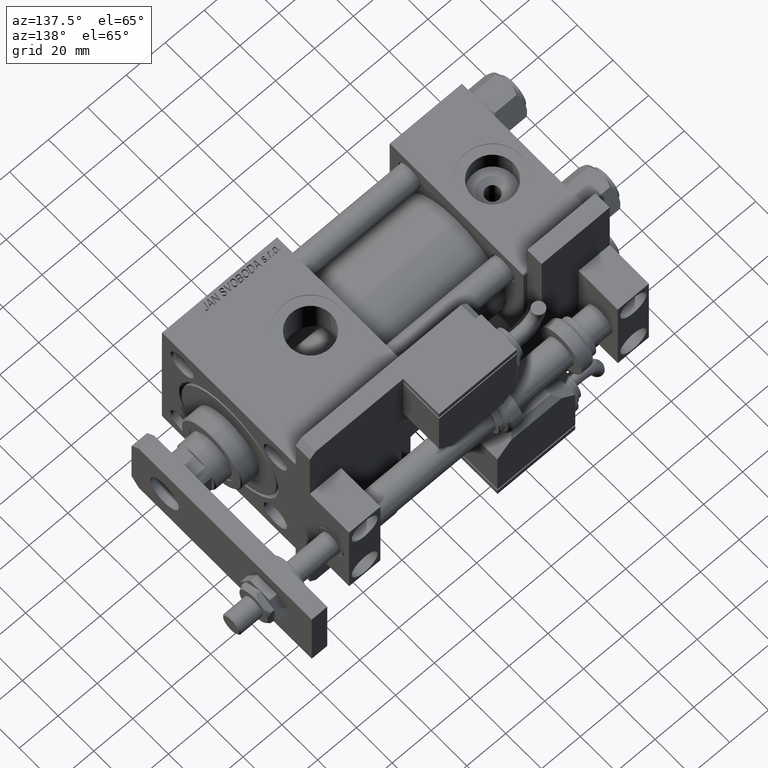
[diagram: clean part render]
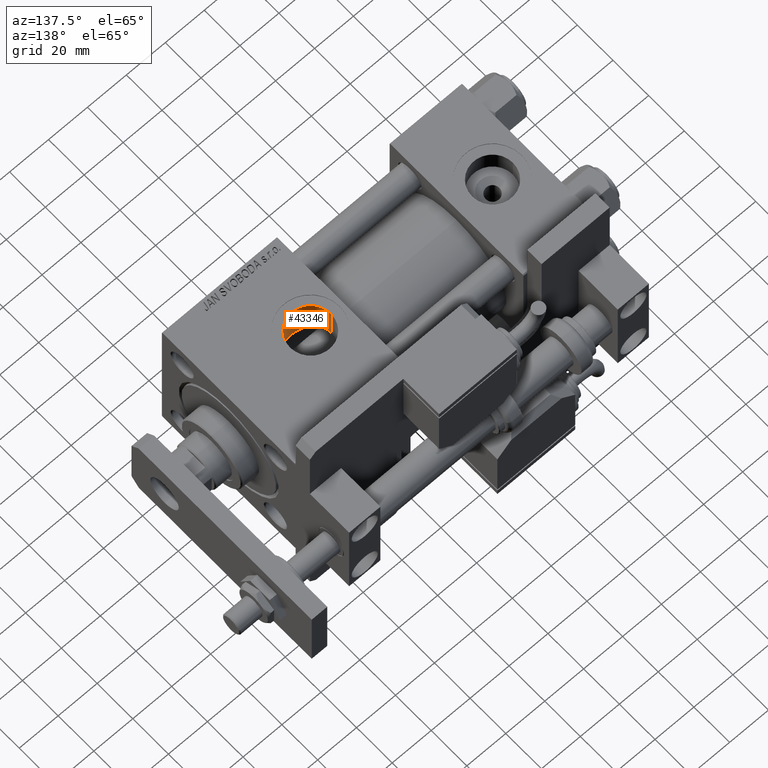
[diagram: same view with one face highlighted and labeled with its STEP entity id]
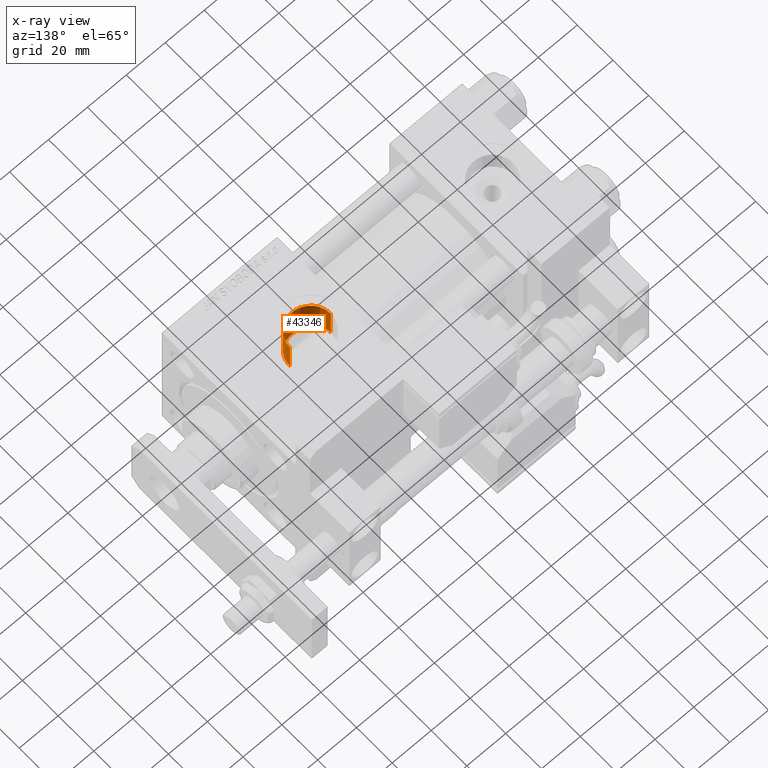
[diagram: x-ray of the same camera — body ghosted, the highlighted face saturated]
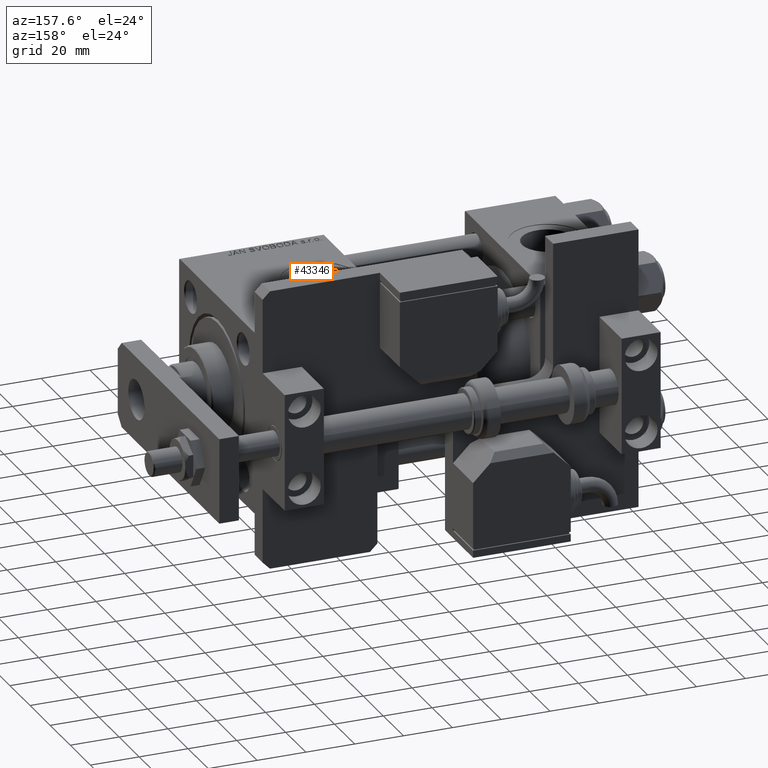
[diagram: same view with one face highlighted and labeled with its STEP entity id]
A machine part, auxiliary view. The second image highlights one B-rep face of the part: STEP entity #43346.
The next image is the same camera in x-ray: the body ghosted, the highlighted face saturated — about 0% of this face is hidden behind the body in this view.
A second angle (auxiliary view) of the same face is appended — the face is thin or edge-on in the first view.
In plain terms, the highlighted cylindrical surface (edge-blend (fillet) strip) has radius 10.48 mm, axis along (0, 0, -1).
Its self-contained STEP definition (entity closure, byte-faithful):
#1515 = CARTESIAN_POINT ( 'NONE',  ( 122.3399055889274081, -1.742655798298271996, 20.42864921923914068 ) ) ;
#2080 = CARTESIAN_POINT ( 'NONE',  ( 102.9348291443812400, -5.301977422005827556, 19.81114944782681775 ) ) ;
#2356 = CARTESIAN_POINT ( 'NONE',  ( 110.2733115260717653, -10.34262317724383706, 17.69989916064850988 ) ) ;
#2645 = CARTESIAN_POINT ( 'NONE',  ( 116.6706182581401663, -9.387829422307122584, 18.22501757978348991 ) ) ;
#5233 = ORIENTED_EDGE ( 'NONE', *, *, #23213, .F. ) ;
#5704 = CIRCLE ( 'NONE', #12916, 10.48000000000000398 ) ;
#5784 = CARTESIAN_POINT ( 'NONE',  ( 122.4626805718164206, -0.6975477180843286940, 20.49112900659146774 ) ) ;
#6055 = CARTESIAN_POINT ( 'NONE',  ( 108.5936487556907366, -9.934775369653648269, 17.93434123160426097 ) ) ;
#6336 = CARTESIAN_POINT ( 'NONE',  ( 112.3595713503588911, -10.47957092101780852, 17.61898389668664677 ) ) ;
#6617 = CARTESIAN_POINT ( 'NONE',  ( 102.0740038033542874, -3.431103397164402491, 20.22105395269823802 ) ) ;
#6626 = VERTEX_POINT ( 'NONE', #51345 ) ;
#6787 = VECTOR ( 'NONE', #19437, 1000.000000000000000 ) ;
#6897 = CARTESIAN_POINT ( 'NONE',  ( 102.6039368114509784, -4.691680676969851582, 19.96626219164001981 ) ) ;
#7024 = VERTEX_POINT ( 'NONE', #13091 ) ;
#8641 = CYLINDRICAL_SURFACE ( 'NONE', #41090, 10.48000000000000398 ) ;
#8970 = B_SPLINE_CURVE_WITH_KNOTS ( 'NONE', 3,
 ( #27301, #44501, #5784, #23039, #1515, #44775, #36604, #19628, #49857, #53810, #45053, #45334, #28132, #15096, #28416, #2645, #32083, #36884, #49296, #23881, #54092, #32356, #6336, #41107, #37164, #32634, #2356, #50145, #6055, #24167, #45613, #23316, #53536, #19913, #40835, #10574, #27856, #41391, #23594, #2080, #6897, #6617, #15380, #11129, #40554, #54373, #19351, #49577 ),
 .UNSPECIFIED., .F., .F.,
 ( 4, 2, 2, 2, 2, 2, 2, 2, 2, 2, 2, 2, 2, 2, 2, 2, 2, 2, 2, 2, 2, 2, 2, 4 ),
 ( 0.03336594956818868252, 0.03440666335407155385, 0.03544737713995442518, 0.03752880471172016785, 0.03961023228348591052, 0.04169165985525165319, 0.04377308742701739586, 0.04481380121290024637, 0.04585451499878310383, 0.04793594257054881180, 0.04897665635643166232, 0.05001737014231451978, 0.05105808392819737029, 0.05209879771408022775, 0.05418022528584588715, 0.05522093907172871685, 0.05626165285761154655, 0.05730236664349437625, 0.05834308042937720595, 0.06042450800114284454, 0.06250593557290848312, 0.06458736314467411477, 0.06562807693055691671, 0.06666879071643973254 ),
 .UNSPECIFIED. ) ;
#10574 = CARTESIAN_POINT ( 'NONE',  ( 105.0885898112246792, -7.885249736585161706, 18.92425426011077150 ) ) ;
#11129 = CARTESIAN_POINT ( 'NONE',  ( 101.6618690020491442, -1.753420589756559789, 20.42774937413482661 ) ) ;
#11362 = CARTESIAN_POINT ( 'NONE',  ( 101.5199999999999960, -6.938893903907226011E-15, 37.29999999999998295 ) ) ;
#12151 = DIRECTION ( 'NONE',  ( 0.000000000000000000, 0.000000000000000000, -1.000000000000000000 ) ) ;
#12333 = FACE_OUTER_BOUND ( 'NONE', #25829, .T. ) ;
#12568 = CARTESIAN_POINT ( 'NONE',  ( 122.4800000000000040, -5.655464058400800522E-15, 37.29999999999998295 ) ) ;
#12916 = AXIS2_PLACEMENT_3D ( 'NONE', #50199, #33256, #19975 ) ;
#13091 = CARTESIAN_POINT ( 'NONE',  ( 122.4800000000000040, 2.510525976792046767E-15, 20.50000000000000000 ) ) ;
#14903 = LINE ( 'NONE', #32167, #6787 ) ;
#15096 = CARTESIAN_POINT ( 'NONE',  ( 117.5629286897241315, -8.888126011188639097, 18.47416199026498518 ) ) ;
#15380 = CARTESIAN_POINT ( 'NONE',  ( 101.8704418930310851, -2.776075960603466619, 20.32272411093433817 ) ) ;
#17257 = ORIENTED_EDGE ( 'NONE', *, *, #43281, .T. ) ;
#17747 = VERTEX_POINT ( 'NONE', #11362 ) ;
#19351 = CARTESIAN_POINT ( 'NONE',  ( 101.5199999999999818, -0.3522970392101446580, 20.49999999999999289 ) ) ;
#19437 = DIRECTION ( 'NONE',  ( 0.000000000000000000, 0.000000000000000000, -1.000000000000000000 ) ) ;
#19628 = CARTESIAN_POINT ( 'NONE',  ( 121.3934776402338400, -4.698176869313505755, 19.96501099493543308 ) ) ;
#19913 = CARTESIAN_POINT ( 'NONE',  ( 105.8819539019970506, -8.515496264593773290, 18.64884414591543305 ) ) ;
#19975 = DIRECTION ( 'NONE',  ( 1.000000000000000000, 0.000000000000000000, 0.000000000000000000 ) ) ;
#23039 = CARTESIAN_POINT ( 'NONE',  ( 122.3923126630182168, -1.397889509560947374, 20.45528894205208204 ) ) ;
#23213 = EDGE_CURVE ( 'NONE', #52496, #17747, #5704, .T. ) ;
#23316 = CARTESIAN_POINT ( 'NONE',  ( 106.7317549997875119, -9.065967442480708627, 18.38724745902399604 ) ) ;
#23594 = CARTESIAN_POINT ( 'NONE',  ( 103.6919360142632627, -6.423734119180503299, 19.47635096710019553 ) ) ;
#23881 = CARTESIAN_POINT ( 'NONE',  ( 113.7444022211327308, -10.33971059625591948, 17.70160590893370056 ) ) ;
#24167 = CARTESIAN_POINT ( 'NONE',  ( 107.6421976996338259, -9.537195956998813173, 18.14702406848241267 ) ) ;
#25195 = LINE ( 'NONE', #29152, #41252 ) ;
#25829 = EDGE_LOOP ( 'NONE', ( #5233, #17257, #35989, #37988 ) ) ;
#25920 = DIRECTION ( 'NONE',  ( 0.000000000000000000, 0.000000000000000000, -1.000000000000000000 ) ) ;
#27301 = CARTESIAN_POINT ( 'NONE',  ( 122.4800000000000040, 2.510525976792046767E-15, 20.50000000000000000 ) ) ;
#27856 = CARTESIAN_POINT ( 'NONE',  ( 104.8359485986580211, -7.656408636808560431, 19.01827437279595756 ) ) ;
#28132 = CARTESIAN_POINT ( 'NONE',  ( 118.4058062254652128, -8.321915944822139366, 18.73951696123976873 ) ) ;
#28416 = CARTESIAN_POINT ( 'NONE',  ( 117.2693312661328235, -9.065327582793809569, 18.38756217834191276 ) ) ;
#29152 = CARTESIAN_POINT ( 'NONE',  ( 101.5199999999999960, -6.938893903907226011E-15, 60.29999999999998295 ) ) ;
#29609 = CARTESIAN_POINT ( 'NONE',  ( 112.0000000000000000, -6.938893903907226011E-15, 60.29999999999998295 ) ) ;
#32083 = CARTESIAN_POINT ( 'NONE',  ( 116.3645131408222682, -9.533972387970669260, 18.14870544625351556 ) ) ;
#32167 = CARTESIAN_POINT ( 'NONE',  ( 122.4800000000000040, -5.655464058400799734E-15, 60.29999999999998295 ) ) ;
#32356 = CARTESIAN_POINT ( 'NONE',  ( 112.7058812406412329, -10.46197453782988340, 17.62948466335771158 ) ) ;
#32634 = CARTESIAN_POINT ( 'NONE',  ( 110.6226997172042275, -10.39498267739094572, 17.66906692794632150 ) ) ;
#33256 = DIRECTION ( 'NONE',  ( -0.000000000000000000, -0.000000000000000000, -1.000000000000000000 ) ) ;
#34516 = EDGE_CURVE ( 'NONE', #17747, #6626, #25195, .T. ) ;
#35989 = ORIENTED_EDGE ( 'NONE', *, *, #40807, .T. ) ;
#36604 = CARTESIAN_POINT ( 'NONE',  ( 121.9301551477474703, -3.420863460384014676, 20.22306166505593339 ) ) ;
#36884 = CARTESIAN_POINT ( 'NONE',  ( 115.4254280724733519, -9.927621080817955246, 17.93825228815606110 ) ) ;
#37164 = CARTESIAN_POINT ( 'NONE',  ( 111.3185208011200871, -10.46366126333136215, 17.62848217895582437 ) ) ;
#37988 = ORIENTED_EDGE ( 'NONE', *, *, #34516, .F. ) ;
#40006 = DIRECTION ( 'NONE',  ( -1.000000000000000000, 0.000000000000000000, 0.000000000000000000 ) ) ;
#40554 = CARTESIAN_POINT ( 'NONE',  ( 101.6085487029493493, -1.404195912787436828, 20.45485109438924454 ) ) ;
#40807 = EDGE_CURVE ( 'NONE', #7024, #6626, #8970, .T. ) ;
#40835 = CARTESIAN_POINT ( 'NONE',  ( 105.6113116980158253, -8.314410140588087472, 18.73966773247922291 ) ) ;
#41090 = AXIS2_PLACEMENT_3D ( 'NONE', #29609, #25920, #40006 ) ;
#41107 = CARTESIAN_POINT ( 'NONE',  ( 111.6658911153561320, -10.48041361291828721, 17.61848264586092938 ) ) ;
#41252 = VECTOR ( 'NONE', #12151, 1000.000000000000000 ) ;
#41391 = CARTESIAN_POINT ( 'NONE',  ( 104.1195211589339493, -6.941452010564963082, 19.29579377263344853 ) ) ;
#43281 = EDGE_CURVE ( 'NONE', #52496, #7024, #14903, .T. ) ;
#43346 = ADVANCED_FACE ( 'NONE', ( #12333 ), #8641, .F. ) ;
#44501 = CARTESIAN_POINT ( 'NONE',  ( 122.4800000000000040, -0.3477322343049014663, 20.50000000000000000 ) ) ;
#44775 = CARTESIAN_POINT ( 'NONE',  ( 122.1333351284747692, -2.761576805218173725, 20.32461380113116789 ) ) ;
#45053 = CARTESIAN_POINT ( 'NONE',  ( 119.8758276749083933, -6.946506951535415197, 19.29392369752212133 ) ) ;
#45334 = CARTESIAN_POINT ( 'NONE',  ( 118.9234153993542691, -7.896134472041798524, 18.92512908471085709 ) ) ;
#45613 = CARTESIAN_POINT ( 'NONE',  ( 107.3309146775892486, -9.388600178004821828, 18.22462129881091997 ) ) ;
#49296 = CARTESIAN_POINT ( 'NONE',  ( 114.7719206031839150, -10.13091671386764503, 17.82246880807400657 ) ) ;
#49577 = CARTESIAN_POINT ( 'NONE',  ( 101.5199999999999960, -8.522187221514314994E-15, 20.50000000000000000 ) ) ;
#49857 = CARTESIAN_POINT ( 'NONE',  ( 121.0686448680448564, -5.296044702130333626, 19.81274461440644785 ) ) ;
#50145 = CARTESIAN_POINT ( 'NONE',  ( 109.2506622480055256, -10.13682253052156135, 17.81908995765660109 ) ) ;
#50199 = CARTESIAN_POINT ( 'NONE',  ( 112.0000000000000000, -6.938893903907226011E-15, 37.29999999999998295 ) ) ;
#51345 = CARTESIAN_POINT ( 'NONE',  ( 101.5199999999999960, -8.522187221514314994E-15, 20.50000000000000000 ) ) ;
#52496 = VERTEX_POINT ( 'NONE', #12568 ) ;
#53536 = CARTESIAN_POINT ( 'NONE',  ( 106.4421765629189167, -8.891274561716759450, 18.47263655462109355 ) ) ;
#53810 = CARTESIAN_POINT ( 'NONE',  ( 120.3121621425135288, -6.418439821813775481, 19.47810485895406885 ) ) ;
#54092 = CARTESIAN_POINT ( 'NONE',  ( 113.3974397948391442, -10.39222505413974673, 17.67069039822370158 ) ) ;
#54373 = CARTESIAN_POINT ( 'NONE',  ( 101.5377999172540484, -0.7045535104270131965, 20.49088343156709513 ) ) ;